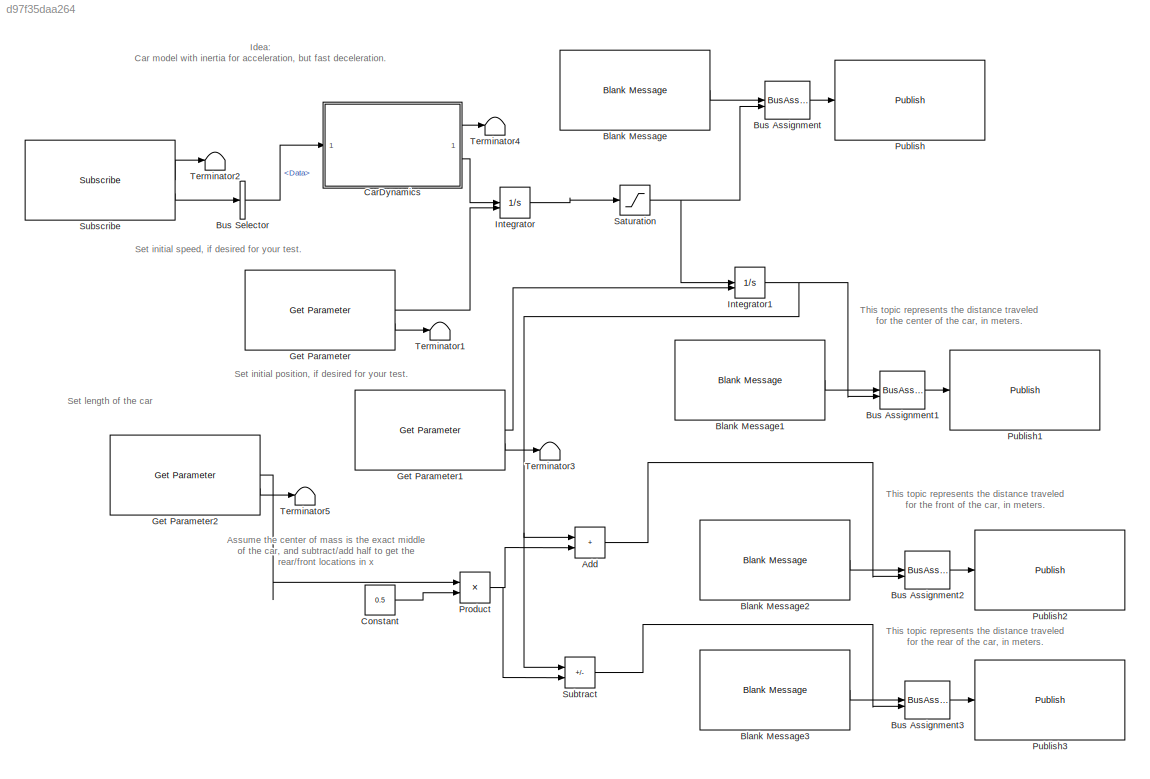
MODEL slx_d97f35daa264
KIND model
CONFIG AbsTol = auto
CONFIG EnableMultiTasking = off
CONFIG FixedStep = 0.05
CONFIG MaxStep = auto
CONFIG MinStep = auto
CONFIG RelTol = 1e-3
CONFIG SampleTimeConstraint = Unconstrained
CONFIG SolverName = FixedStepAuto
CONFIG StartTime = 0.0
CONFIG StopTime = inf
BLOCK [Sum] Add
  IconShape = rectangular
BLOCK [Reference] Blank Message  REF=robotlib/Blank Message
  LibrarySourceBlock = roslib/ROS/Blank Message
  SourceBlock = robotlib/Blank Message
  SourceType = ROS Blank Message
BLOCK [Reference] Blank Message1  REF=robotlib/Blank Message
  LibrarySourceBlock = roslib/ROS/Blank Message
  SourceBlock = robotlib/Blank Message
  SourceType = ROS Blank Message
BLOCK [Reference] Blank Message2  REF=robotlib/Blank Message
  LibrarySourceBlock = roslib/ROS/Blank Message
  SourceBlock = robotlib/Blank Message
  SourceType = ROS Blank Message
BLOCK [Reference] Blank Message3  REF=robotlib/Blank Message
  LibrarySourceBlock = roslib/ROS/Blank Message
  SourceBlock = robotlib/Blank Message
  SourceType = ROS Blank Message
BLOCK [BusAssignment] Bus Assignment
  AssignedSignals = Data
BLOCK [BusAssignment] Bus Assignment1
  AssignedSignals = Data
BLOCK [BusAssignment] Bus Assignment2
  AssignedSignals = Data
BLOCK [BusAssignment] Bus Assignment3
  AssignedSignals = Data
BLOCK [BusSelector] Bus Selector
  OutputSignals = Data
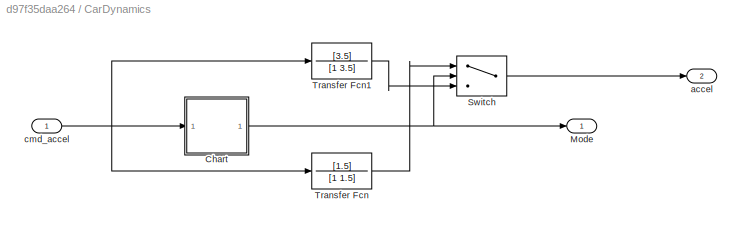
BLOCK [SubSystem] CarDynamics
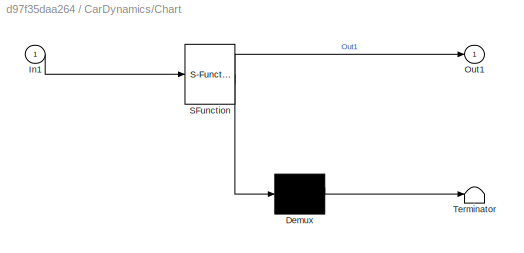
BLOCK [SubSystem] CarDynamics/Chart
  ErrorFcn = Stateflow.Translate.translate
  PermitHierarchicalResolution = ExplicitOnly
  SFBlockType = Chart
  TreatAsAtomicUnit = on
BLOCK [Demux] CarDynamics/Chart/ Demux 
  Outputs = 1
BLOCK [S-Function] CarDynamics/Chart/ SFunction 
  EnableBusSupport = off
  FunctionName = sf_sfun
  PortCounts = [1 2]
  SFcnIsStateOwnerBlock = off
  SFunctionDeploymentMode = off
  Tag = Stateflow S-Function 3
BLOCK [Terminator] CarDynamics/Chart/ Terminator 
BLOCK [Inport] CarDynamics/Chart/In1
BLOCK [Outport] CarDynamics/Chart/Out1
BLOCK [Outport] CarDynamics/Mode
BLOCK [Switch] CarDynamics/Switch
  Criteria = u2 > Threshold
  InputSameDT = off
  SaturateOnIntegerOverflow = off
BLOCK [TransferFcn] CarDynamics/Transfer Fcn
  Denominator = [1 1.5]
  Numerator = [1.5]
BLOCK [TransferFcn] CarDynamics/Transfer Fcn1
  Denominator = [1 3.5]
  Numerator = [3.5]
BLOCK [Outport] CarDynamics/accel
  Port = 2
BLOCK [Inport] CarDynamics/cmd_accel
BLOCK [Constant] Constant
  Value = 0.5
BLOCK [Reference] Get Parameter  REF=robotlib/Get Parameter
  LibrarySourceBlock = roslib/ROS/Get Parameter
  SourceBlock = robotlib/Get Parameter
  SourceType = ROS Get Parameter
BLOCK [Reference] Get Parameter1  REF=robotlib/Get Parameter
  LibrarySourceBlock = roslib/ROS/Get Parameter
  SourceBlock = robotlib/Get Parameter
  SourceType = ROS Get Parameter
BLOCK [Reference] Get Parameter2  REF=robotlib/Get Parameter
  LibrarySourceBlock = roslib/ROS/Get Parameter
  SourceBlock = robotlib/Get Parameter
  SourceType = ROS Get Parameter
BLOCK [Integrator] Integrator
  InitialConditionSource = external
  LimitOutput = on
  LowerSaturationLimit = 0
  UpperSaturationLimit = 40
BLOCK [Integrator] Integrator1
  InitialConditionSource = external
BLOCK [Product] Product
BLOCK [Reference] Publish  REF=robotlib/Publish
  LibrarySourceBlock = roslib/ROS/Publish
  SourceBlock = robotlib/Publish
  SourceType = ROS Publish
BLOCK [Reference] Publish1  REF=robotlib/Publish
  LibrarySourceBlock = roslib/ROS/Publish
  SourceBlock = robotlib/Publish
  SourceType = ROS Publish
BLOCK [Reference] Publish2  REF=robotlib/Publish
  LibrarySourceBlock = roslib/ROS/Publish
  SourceBlock = robotlib/Publish
  SourceType = ROS Publish
BLOCK [Reference] Publish3  REF=robotlib/Publish
  LibrarySourceBlock = roslib/ROS/Publish
  SourceBlock = robotlib/Publish
  SourceType = ROS Publish
BLOCK [Saturate] Saturation
  LowerLimit = 0
  UpperLimit = 40
BLOCK [Reference] Subscribe  REF=robotlib/Subscribe
  LibrarySourceBlock = roslib/ROS/Subscribe
  SourceBlock = robotlib/Subscribe
  SourceType = ROS Subscribe
BLOCK [Sum] Subtract
  IconShape = rectangular
  Inputs = +-
BLOCK [Terminator] Terminator1
BLOCK [Terminator] Terminator2
BLOCK [Terminator] Terminator3
BLOCK [Terminator] Terminator4
BLOCK [Terminator] Terminator5
ANNOTATION (root): Assume the center of mass is the exact middle of the car, and subtract/add half to get the rear/front locations in x
ANNOTATION (root): Idea: Car model with inertia for acceleration, but fast deceleration.
ANNOTATION (root): Set initial position, if desired for your test.
ANNOTATION (root): Set initial speed, if desired for your test.
ANNOTATION (root): Set length of the car
ANNOTATION (root): This topic represents the distance traveled for the center of the car, in meters.
ANNOTATION (root): This topic represents the distance traveled for the front of the car, in meters.
ANNOTATION (root): This topic represents the distance traveled for the rear of the car, in meters.
LINE Add:1 -> Bus Assignment2:2
LINE Blank Message1:1 -> Bus Assignment1:1
LINE Blank Message2:1 -> Bus Assignment2:1
LINE Blank Message3:1 -> Bus Assignment3:1
LINE Blank Message:1 -> Bus Assignment:1
LINE Bus Assignment1:1 -> Publish1:1
LINE Bus Assignment2:1 -> Publish2:1
LINE Bus Assignment3:1 -> Publish3:1
LINE Bus Assignment:1 -> Publish:1
LINE Bus Selector:1 -> CarDynamics:1
NET CarDynamics/Chart:1 -> CarDynamics/Mode:1, CarDynamics/Switch:2
LINE CarDynamics/Switch:1 -> CarDynamics/accel:1
LINE CarDynamics/Transfer Fcn1:1 -> CarDynamics/Switch:3
LINE CarDynamics/Transfer Fcn:1 -> CarDynamics/Switch:1
NET CarDynamics/cmd_accel:1 -> CarDynamics/Chart:1, CarDynamics/Transfer Fcn1:1, CarDynamics/Transfer Fcn:1
LINE CarDynamics:1 -> Terminator4:1
LINE CarDynamics:2 -> Integrator:1
LINE Constant:1 -> Product:2
LINE Get Parameter1:1 -> Integrator1:2
LINE Get Parameter1:2 -> Terminator3:1
LINE Get Parameter2:1 -> Product:1
LINE Get Parameter2:2 -> Terminator5:1
LINE Get Parameter:1 -> Integrator:2
LINE Get Parameter:2 -> Terminator1:1
NET Integrator1:1 -> Add:1, Bus Assignment1:2, Subtract:1
LINE Integrator:1 -> Saturation:1
NET Product:1 -> Add:2, Subtract:2
NET Saturation:1 -> Bus Assignment:2, Integrator1:1
LINE Subscribe:1 -> Terminator2:1
LINE Subscribe:2 -> Bus Selector:1
LINE Subtract:1 -> Bus Assignment3:2
note: NET lines group one-source signal fan-out (src -> all destinations, sorted); 1:1 wires keep LINE
CHART CarDynamics/Chart states=2 transitions=3
  STATE_LABEL 'Default\nentry: Out1=1;'
  STATE_LABEL 'Slowing\nentry: Out1=-1;'
CHART  states=0 transitions=0
